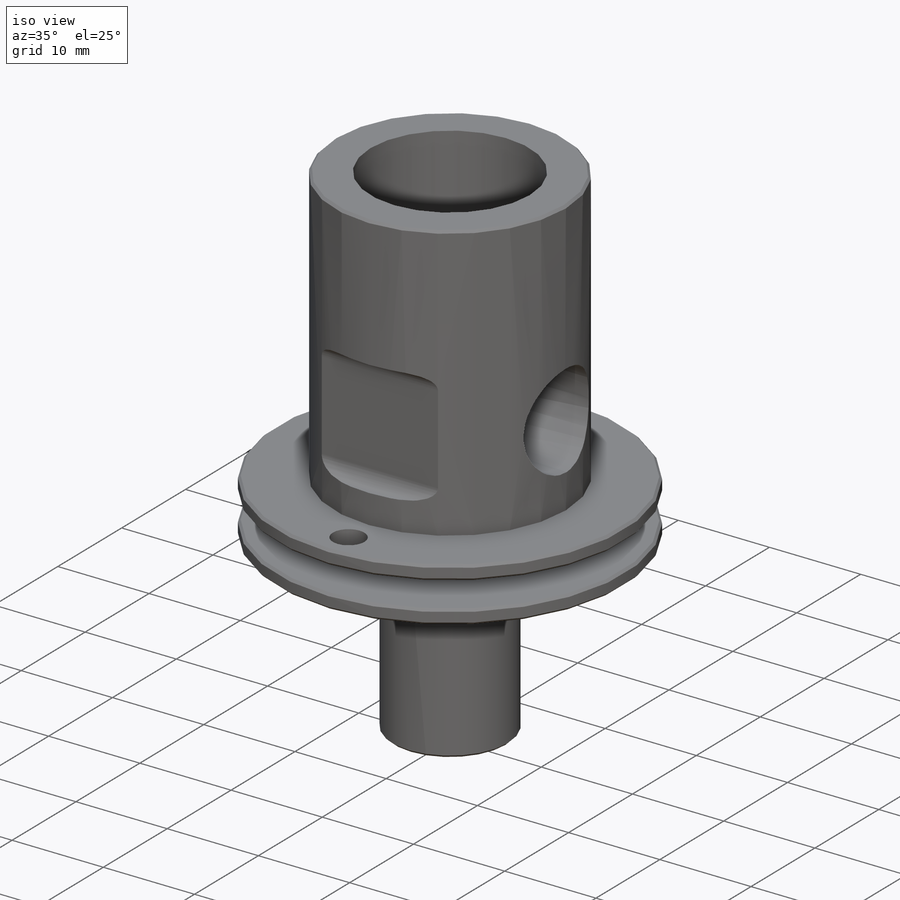
[diagram: iso view]
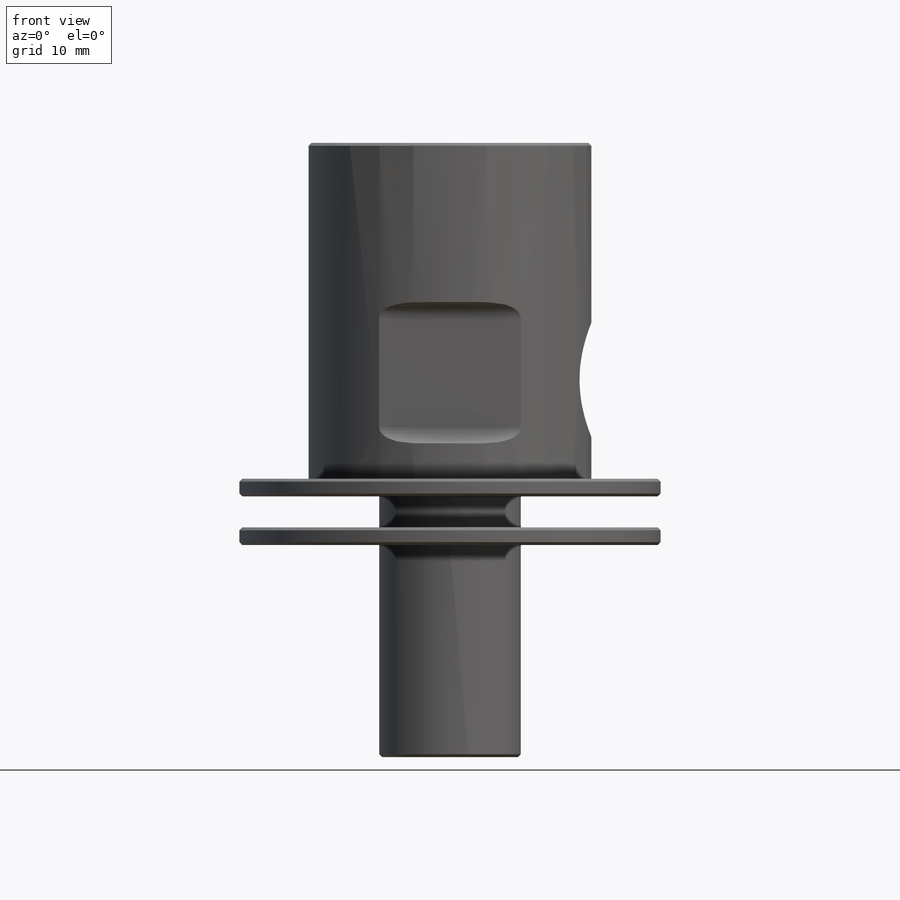
[diagram: front view]
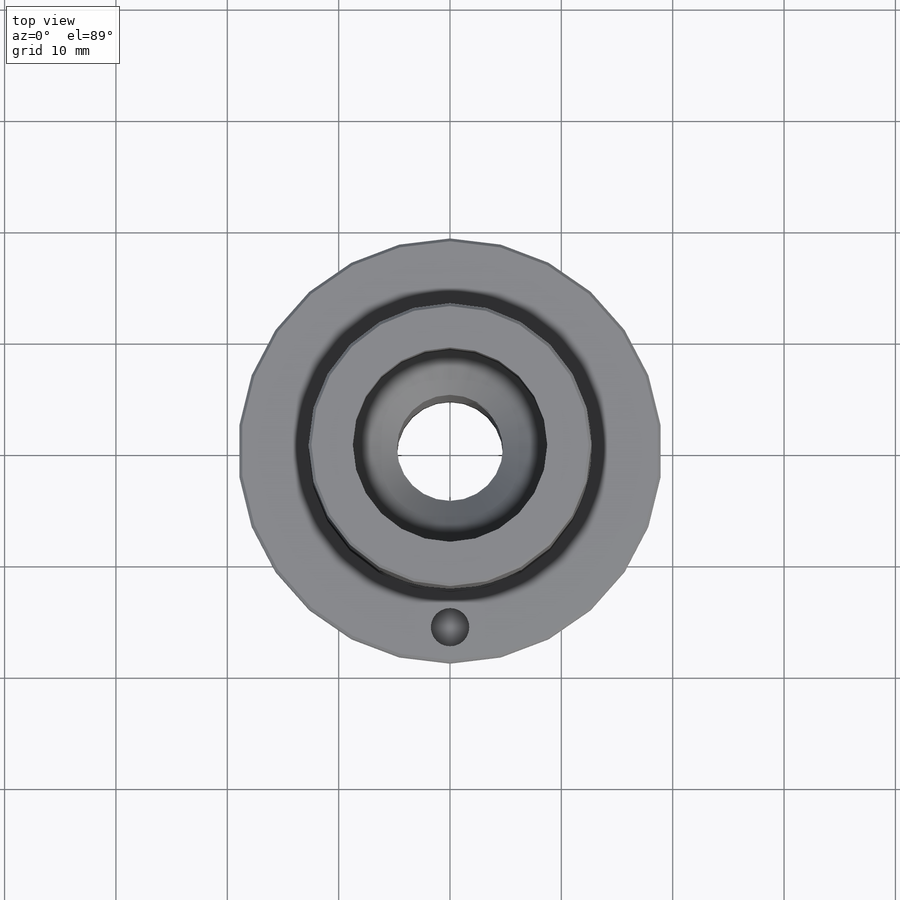
[diagram: top view]
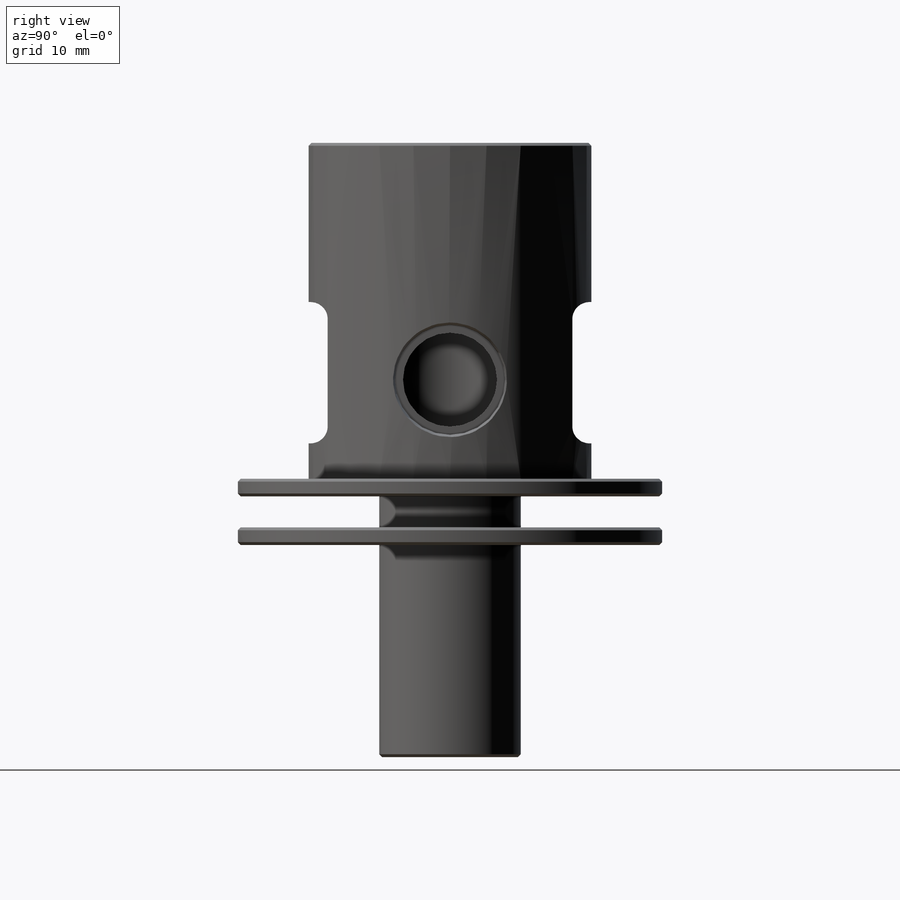
[diagram: right view]
SOLIDWORKS PART (.sldprt)
format: sldprt  version: not decoded by parser v0  size: 301,568 bytes
history: native  units: mm
features: sketch x9, hole x3, thread x2, cut_extrude x2, material x1, revolve x1, plane x1, chamfer x1 (+12 scaffold rows collapsed)
feature tree (32):
  scaffold x12  (default folders/planes/origin — collapsed)
  material  "Material <not specified>"
  sketch  "Sketch1"  dims[c1.D1=25.4mm c1.D2=38.1mm c1.D3=12.7mm c1.D4=30.1625mm c1.D5=19.05mm c1.D6=1.5748mm c1.D7=2.794mm c1.D8=1.5748mm c1.D9=12.7mm c2.D4=0.0mm c2.D5=30.1625mm c2.D6=31.7373mm c2.D7=34.5313mm c2.D8=36.1061mm c2.D9=55.1561mm]
  revolve  "Revolve1"  Angle=360deg
  plane  "Plane1"  Offset=12.7mm
  hole  "1/8 NPT Tapped Hole1"  Diameter=8.4328mm Depth=11.6332mm
  sketch  "Sketch4"  dims[D1=8.89mm]
  sketch  "Sketch5"  dims[hole-wizard template sketch: 51 standard entries collapsed; hole parameters kept: c13.Tap Drill Depth=11.6332mm c13.Thread Dia.=~10.28761mm c13.D4=~22.362017mm c13.Thread Angle=3.43deg c13.Thread Depth=6.9342mm c13.D6=~25.48394mm c13.Drill Angle=118.0deg]
  hole  "3/4-16 Tapped Hole1"  Diameter=17.4625mm Depth=12.5222mm
  sketch  "Sketch7"
  sketch  "Sketch8"  dims[hole-wizard template sketch: 46 standard entries collapsed; hole parameters kept: c15.Tap Drill Dia.=17.4625mm c15.Tap Drill Depth=12.5222mm c15.D3=~14.816244mm c15.Drill Angle=90.0deg]
  thread  "Hole Thread1"  Diameter=4.572mm  [1 undecoded]
  sketch  "Sketch9"  dims[D1=9.525mm]
  cut_extrude  "Thru hole"  [1 undecoded]
  sketch  "Sketch10"  dims[D4=1.524mm D1=21.971mm D2=12.7mm D3=3.175mm]
  cut_extrude  "Wrench flats 7/8""  Depth=25.4mm
  chamfer  "Break all edges"  Distance=0.254mm Angle=45deg
  hole  "#8-32 Tapped Hole1"  Diameter=3.4544mm Depth=4.3688mm
  sketch  "Sketch12"  dims[D1=15.875mm]
  sketch  "Sketch11"  dims[hole-wizard template sketch: 47 standard entries collapsed; hole parameters kept: c15.Tap Drill Depth=4.3688mm c15.D3=~14.816244mm c15.Drill Angle=90.0deg]
  thread  "Hole Thread2"  Diameter=1.5748mm  [1 undecoded]
decode coverage: 16 of 18 modeling features carry decoded parameters
note: ~ marks probable driven/reference dimensions
note: 3 parameter values undecoded
note: suppression state not decoded; provenance and decode notes live in map.json
